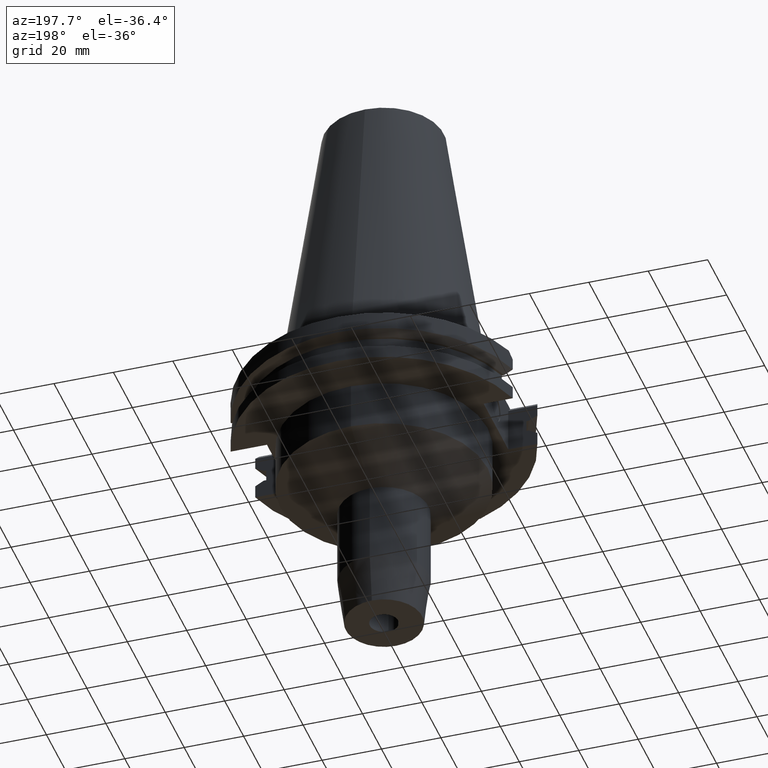
[diagram: clean part render]
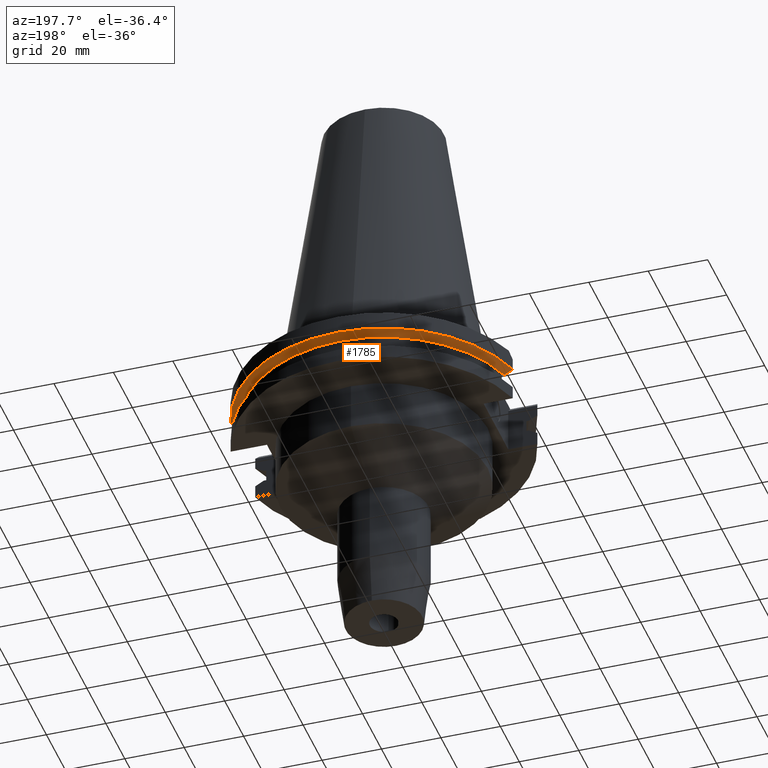
[diagram: same view with one face highlighted and labeled with its STEP entity id]
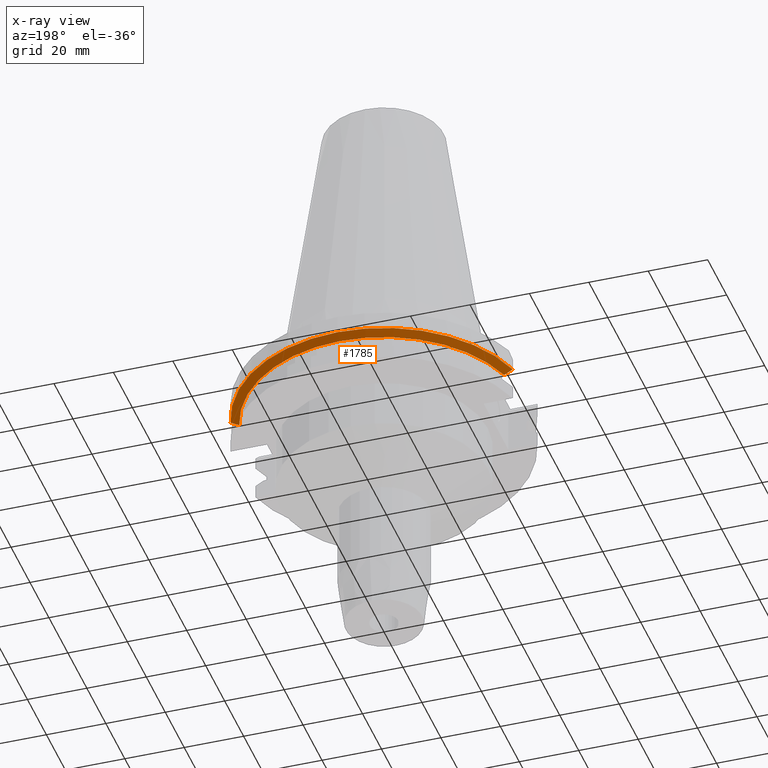
[diagram: x-ray of the same camera — body ghosted, the highlighted face saturated]
A machine part, auxiliary view. The second image highlights one B-rep face of the part: STEP entity #1785.
The next image is the same camera in x-ray: the body ghosted, the highlighted face saturated — about 0% of this face is hidden behind the body in this view.
In plain terms, the highlighted conical surface has half-angle 60 deg.
Its self-contained STEP definition (entity closure, byte-faithful):
#493=CARTESIAN_POINT('',(0.E0,1.121722380079E-14,-9.207500000003E0));
#494=DIRECTION('',(0.E0,0.E0,1.E0));
#495=DIRECTION('',(9.602855947900E-1,2.790189535476E-1,0.E0));
#496=AXIS2_PLACEMENT_3D('',#493,#494,#495);
#501=CARTESIAN_POINT('',(0.E0,1.121722380079E-14,-9.207500000003E0));
#502=DIRECTION('',(0.E0,0.E0,1.E0));
#503=DIRECTION('',(0.E0,1.E0,0.E0));
#504=AXIS2_PLACEMENT_3D('',#501,#502,#503);
#525=CARTESIAN_POINT('',(4.458657636813E1,1.2955E1,-9.207500000001E0));
#526=CARTESIAN_POINT('',(4.490800201650E1,1.2955E1,-9.029294823467E0));
#527=CARTESIAN_POINT('',(4.555063729230E1,1.2955E1,-8.672683119231E0));
#528=CARTESIAN_POINT('',(4.651400683739E1,1.2955E1,-8.137276542127E0));
#529=CARTESIAN_POINT('',(4.715587471992E1,1.2955E1,-7.780034925951E0));
#530=CARTESIAN_POINT('',(4.747671146204E1,1.2955E1,-7.601333230925E0));
#535=CARTESIAN_POINT('',(0.E0,1.121722380079E-14,-7.601333230926E0));
#536=DIRECTION('',(0.E0,0.E0,1.E0));
#537=DIRECTION('',(9.647287063661E-1,2.632461264923E-1,0.E0));
#538=AXIS2_PLACEMENT_3D('',#535,#536,#537);
#543=CARTESIAN_POINT('',(0.E0,1.121722380079E-14,-7.601333230926E0));
#544=DIRECTION('',(0.E0,0.E0,1.E0));
#545=DIRECTION('',(0.E0,1.E0,0.E0));
#546=AXIS2_PLACEMENT_3D('',#543,#544,#545);
#551=CARTESIAN_POINT('',(-4.747671146204E1,1.2955E1,-7.601333230925E0));
#552=CARTESIAN_POINT('',(-4.715587471991E1,1.2955E1,-7.780034925956E0));
#553=CARTESIAN_POINT('',(-4.651400683737E1,1.2955E1,-8.137276542138E0));
#554=CARTESIAN_POINT('',(-4.555063729228E1,1.2955E1,-8.672683119242E0));
#555=CARTESIAN_POINT('',(-4.490800201650E1,1.2955E1,-9.029294823471E0));
#556=CARTESIAN_POINT('',(-4.458657636813E1,1.2955E1,-9.207500000001E0));
#1358=CARTESIAN_POINT('',(-4.458657636813E1,1.2955E1,-9.207500000001E0));
#1359=VERTEX_POINT('',#1358);
#1360=VERTEX_POINT('',#551);
#1382=CARTESIAN_POINT('',(4.458657636813E1,1.2955E1,-9.207500000001E0));
#1383=VERTEX_POINT('',#1382);
#1384=CARTESIAN_POINT('',(4.240378546272E-14,4.643053755053E1,
-9.207500000003E0));
#1385=VERTEX_POINT('',#1384);
#1388=VERTEX_POINT('',#530);
#1389=CARTESIAN_POINT('',(0.E0,4.92125E1,-7.601333230926E0));
#1390=VERTEX_POINT('',#1389);
#1772=CARTESIAN_POINT('',(0.E0,1.121722380079E-14,-8.404416615464E0));
#1773=DIRECTION('',(0.E0,0.E0,1.E0));
#1774=DIRECTION('',(0.E0,1.E0,0.E0));
#1775=AXIS2_PLACEMENT_3D('',#1772,#1773,#1774);
#1776=CONICAL_SURFACE('',#1775,4.782151877527E1,6.E1);
#1777=ORIENTED_EDGE('',*,*,#1583,.T.);
#1778=ORIENTED_EDGE('',*,*,#1626,.T.);
#1779=ORIENTED_EDGE('',*,*,#1624,.T.);
#1780=ORIENTED_EDGE('',*,*,#1684,.T.);
#1781=ORIENTED_EDGE('',*,*,#1764,.F.);
#1782=ORIENTED_EDGE('',*,*,#1762,.F.);
#1783=EDGE_LOOP('',(#1777,#1778,#1779,#1780,#1781,#1782));
#1784=FACE_OUTER_BOUND('',#1783,.F.);
#497=CIRCLE('',#496,4.643053755053E1);
#505=CIRCLE('',#504,4.643053755053E1);
#531=B_SPLINE_CURVE_WITH_KNOTS('',3,(#525,#526,#527,#528,#529,#530),
.UNSPECIFIED.,.F.,.F.,(4,1,1,4),(0.E0,3.333333333333E-1,6.666666666667E-1,1.E0),
.UNSPECIFIED.);
#539=CIRCLE('',#538,4.92125E1);
#547=CIRCLE('',#546,4.92125E1);
#557=B_SPLINE_CURVE_WITH_KNOTS('',3,(#551,#552,#553,#554,#555,#556),
.UNSPECIFIED.,.F.,.F.,(4,1,1,4),(0.E0,3.333333333333E-1,6.666666666667E-1,1.E0),
.UNSPECIFIED.);
#1583=EDGE_CURVE('',#1383,#1388,#531,.T.);
#1624=EDGE_CURVE('',#1390,#1360,#547,.T.);
#1626=EDGE_CURVE('',#1388,#1390,#539,.T.);
#1684=EDGE_CURVE('',#1360,#1359,#557,.T.);
#1762=EDGE_CURVE('',#1383,#1385,#497,.T.);
#1764=EDGE_CURVE('',#1385,#1359,#505,.T.);
#1785=ADVANCED_FACE('',(#1784),#1776,.T.);